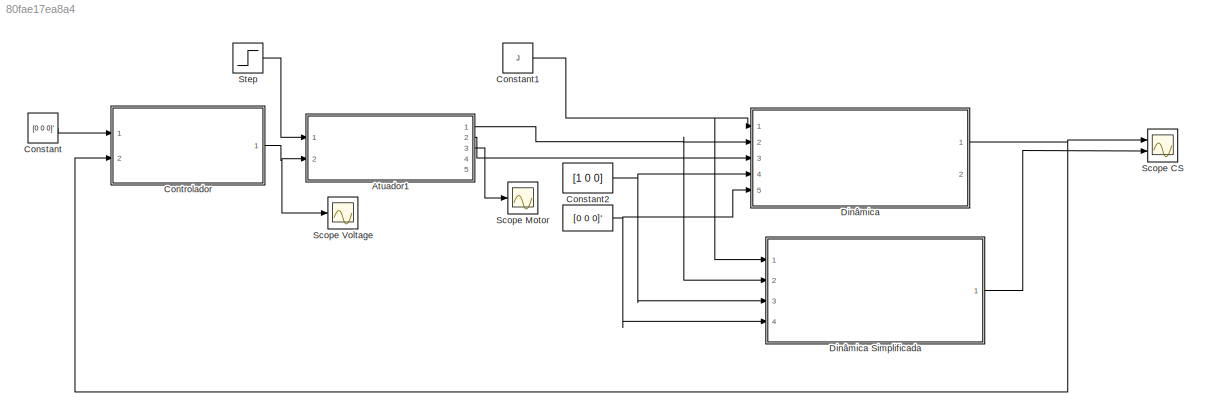
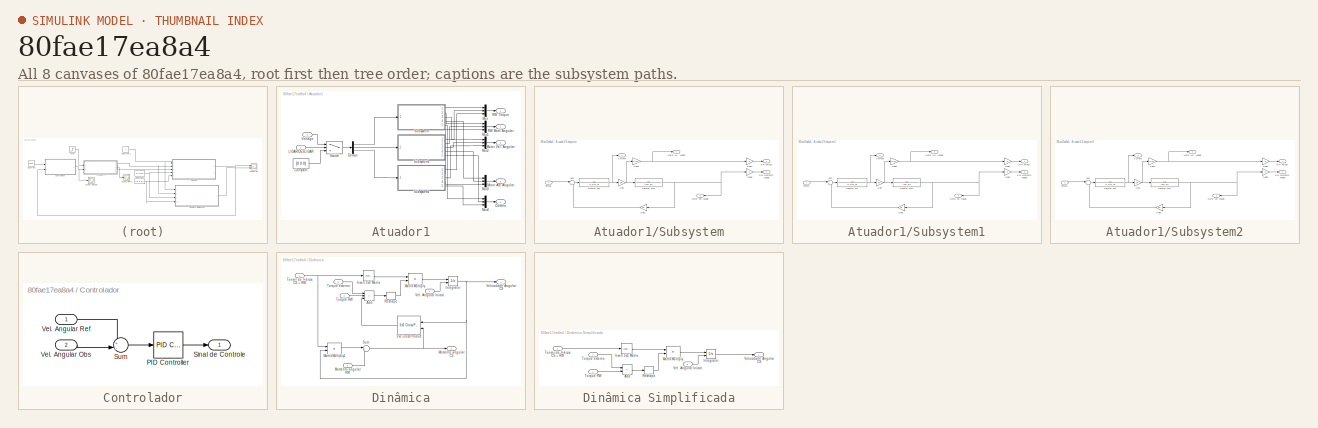
[diagram: thumbnail index - all 8 canvases of the model, root first then tree order]
MODEL slx_80fae17ea8a4
KIND model
CONFIG AbsTol = auto
CONFIG EnableMultiTasking = off
CONFIG FixedStep = auto
CONFIG MaxStep = 0.4
CONFIG MinStep = auto
CONFIG RelTol = 1e-3
CONFIG SampleTimeConstraint = Unconstrained
CONFIG SolverName = ode45
CONFIG StartTime = 0.0
CONFIG StopTime = 10000
BLOCK [Constant]  
  Value = [0 0 0]'
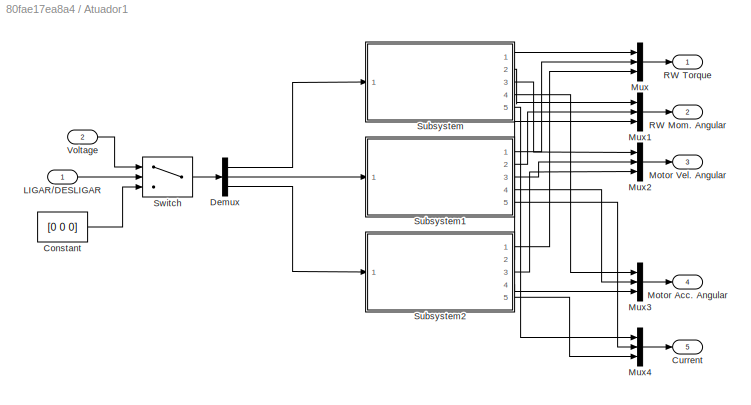
BLOCK [SubSystem] Atuador1
  Ports = [2, 5]
  RequestExecContextInheritance = off
BLOCK [Constant] Atuador1/Constant
  Value = [0 0 0]
BLOCK [Outport] Atuador1/Current
  Port = 5
BLOCK [Demux] Atuador1/Demux
  Outputs = 3
  Ports = [1, 3]
BLOCK [Inport] Atuador1/LIGAR//DESLIGAR
BLOCK [Outport] Atuador1/Motor Acc. Angular
  Port = 4
BLOCK [Outport] Atuador1/Motor Vel. Angular
  Port = 3
BLOCK [Mux] Atuador1/Mux
  DisplayOption = bar
  Inputs = 3
  Ports = [3, 1]
BLOCK [Mux] Atuador1/Mux1
  DisplayOption = bar
  Inputs = 3
  Ports = [3, 1]
BLOCK [Mux] Atuador1/Mux2
  DisplayOption = bar
  Inputs = 3
  Ports = [3, 1]
BLOCK [Mux] Atuador1/Mux3
  DisplayOption = bar
  Inputs = 3
  Ports = [3, 1]
BLOCK [Mux] Atuador1/Mux4
  DisplayOption = bar
  Inputs = 3
  Ports = [3, 1]
BLOCK [Outport] Atuador1/RW Mom. Angular
  Port = 2
BLOCK [Outport] Atuador1/RW Torque
BLOCK [SubSystem] Atuador1/Subsystem
  Ports = [1, 5]
  RequestExecContextInheritance = off
BLOCK [Outport] Atuador1/Subsystem/Current
  Port = 5
BLOCK [Gain] Atuador1/Subsystem/Gain
  Gain = Km
BLOCK [Gain] Atuador1/Subsystem/Gain1
  Gain = Ke
BLOCK [Gain] Atuador1/Subsystem/Gain2
  Gain = 1/Jm
BLOCK [Gain] Atuador1/Subsystem/Gain3
  Gain = -Jr
BLOCK [Gain] Atuador1/Subsystem/Gain4
  Gain = -Jr
BLOCK [Outport] Atuador1/Subsystem/Motor Acc. Angular
  Port = 4
BLOCK [Outport] Atuador1/Subsystem/Motor Vel. Angular
  Port = 3
BLOCK [Outport] Atuador1/Subsystem/RW Momento Angular
  Port = 2
BLOCK [Outport] Atuador1/Subsystem/RW Torque
BLOCK [Sum] Atuador1/Subsystem/Sum
  Inputs = |+-
  Ports = [2, 1]
BLOCK [Inport] Atuador1/Subsystem/Tensão
BLOCK [TransferFcn] Atuador1/Subsystem/Transfer Fcn
  Denominator = [L_a R_a]
BLOCK [TransferFcn] Atuador1/Subsystem/Transfer Fcn1
  Denominator = [Jm Kt]
BLOCK [SubSystem] Atuador1/Subsystem1
  Ports = [1, 5]
  RequestExecContextInheritance = off
BLOCK [Outport] Atuador1/Subsystem1/Current
  Port = 5
BLOCK [Gain] Atuador1/Subsystem1/Gain
  Gain = Km
BLOCK [Gain] Atuador1/Subsystem1/Gain1
  Gain = Ke
BLOCK [Gain] Atuador1/Subsystem1/Gain2
  Gain = 1/Jm
BLOCK [Gain] Atuador1/Subsystem1/Gain3
  Gain = -Jr
BLOCK [Gain] Atuador1/Subsystem1/Gain4
  Gain = -Jr
BLOCK [Outport] Atuador1/Subsystem1/Motor Acc. Angular
  Port = 4
BLOCK [Outport] Atuador1/Subsystem1/Motor Vel. Angular
  Port = 3
BLOCK [Outport] Atuador1/Subsystem1/RW Momento Angular
  Port = 2
BLOCK [Outport] Atuador1/Subsystem1/RW Torque
BLOCK [Sum] Atuador1/Subsystem1/Sum
  Inputs = |+-
  Ports = [2, 1]
BLOCK [Inport] Atuador1/Subsystem1/Tensão
BLOCK [TransferFcn] Atuador1/Subsystem1/Transfer Fcn
  Denominator = [L_a R_a]
BLOCK [TransferFcn] Atuador1/Subsystem1/Transfer Fcn1
  Denominator = [Jm Kt]
BLOCK [SubSystem] Atuador1/Subsystem2
  Ports = [1, 5]
  RequestExecContextInheritance = off
BLOCK [Outport] Atuador1/Subsystem2/Current
  Port = 5
BLOCK [Gain] Atuador1/Subsystem2/Gain
  Gain = Km
BLOCK [Gain] Atuador1/Subsystem2/Gain1
  Gain = Ke
BLOCK [Gain] Atuador1/Subsystem2/Gain2
  Gain = 1/Jm
BLOCK [Gain] Atuador1/Subsystem2/Gain3
  Gain = -Jr
BLOCK [Gain] Atuador1/Subsystem2/Gain4
  Gain = -Jr
BLOCK [Outport] Atuador1/Subsystem2/Motor Acc. Angular
  Port = 4
BLOCK [Outport] Atuador1/Subsystem2/Motor Vel. Angular
  Port = 3
BLOCK [Outport] Atuador1/Subsystem2/RW Momento Angular
  Port = 2
BLOCK [Outport] Atuador1/Subsystem2/RW Torque
BLOCK [Sum] Atuador1/Subsystem2/Sum
  Inputs = |+-
  Ports = [2, 1]
BLOCK [Inport] Atuador1/Subsystem2/Tensão
BLOCK [TransferFcn] Atuador1/Subsystem2/Transfer Fcn
  Denominator = [L_a R_a]
BLOCK [TransferFcn] Atuador1/Subsystem2/Transfer Fcn1
  Denominator = [Jm Kt]
BLOCK [Switch] Atuador1/Switch
  Criteria = u2 > Threshold
  InputSameDT = off
  SaturateOnIntegerOverflow = off
BLOCK [Inport] Atuador1/Voltage
  Port = 2
BLOCK [Constant] Constant
  Value = [0 0 0]'
BLOCK [Constant] Constant1
  Value = J
BLOCK [Constant] Constant2
  Value = [1 0 0]
BLOCK [SubSystem] Controlador
  Ports = [2, 1]
  RequestExecContextInheritance = off
BLOCK [Reference] Controlador/PID Controller  REF=slpidlib/PID Controller
  Ports = [1, 1]
  SourceBlock = slpidlib/PID Controller
  SourceProductBaseCode = SL
  SourceType = PID 1dof
BLOCK [Outport] Controlador/Sinal de Controle
BLOCK [Sum] Controlador/Sum
  Inputs = +-|
  Ports = [2, 1]
BLOCK [Inport] Controlador/Vel. Angular Obs
  Port = 2
BLOCK [Inport] Controlador/Vel. Angular Ref
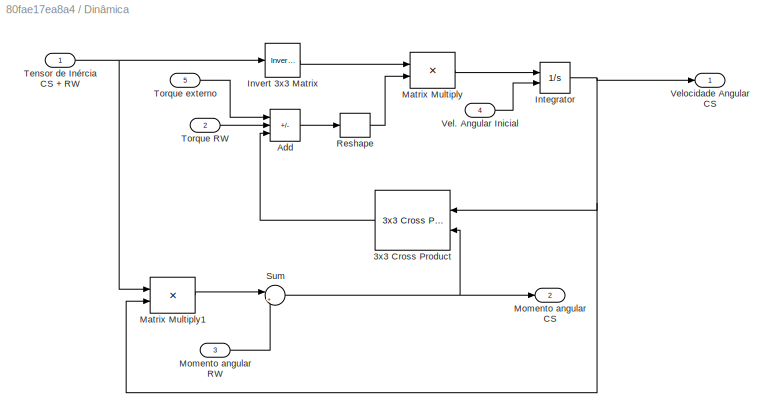
BLOCK [SubSystem] Dinâmica
  Ports = [5, 2]
  RequestExecContextInheritance = off
BLOCK [SubSystem] Dinâmica Simplificada
  Ports = [4, 1]
  RequestExecContextInheritance = off
BLOCK [Sum] Dinâmica Simplificada/Add
  IconShape = rectangular
  Inputs = +-
  Ports = [2, 1]
BLOCK [Integrator] Dinâmica Simplificada/Integrator
  InitialConditionSource = external
  Ports = [2, 1]
BLOCK [Reference] Dinâmica Simplificada/Invert 3x3 Matrix  REF=aerolibutil/Invert 
3x3 Matrix
  Ports = [1, 1]
  SourceBlock = aerolibutil/Invert \n3x3 Matrix
  SourceProductBaseCode = AE
  SourceType = Invert 3x3 Matrix
BLOCK [Product] Dinâmica Simplificada/Matrix Multiply
  Multiplication = Matrix(*)
  Ports = [2, 1]
BLOCK [Reshape] Dinâmica Simplificada/Reshape
  OutputDimensionality = Column vector (2-D)
  Ports = [1, 1]
BLOCK [Inport] Dinâmica Simplificada/Tensor de Inércia CS + RW
BLOCK [Inport] Dinâmica Simplificada/Torque RW
  Port = 2
BLOCK [Inport] Dinâmica Simplificada/Torque externo
  Port = 4
BLOCK [Inport] Dinâmica Simplificada/Vel. Angular Inicial
  Port = 3
BLOCK [Outport] Dinâmica Simplificada/Velocidade Angular CS
BLOCK [Reference] Dinâmica/3x3 Cross Product  REF=sharedutil/3x3 Cross Product
  NameLocation = top
  Ports = [2, 1]
  SourceBlock = sharedutil/3x3 Cross Product
  SourceProductBaseCode = AE,PW,DR,MT,UV,VE
  SourceType = CrossProduct
BLOCK [Sum] Dinâmica/Add
  IconShape = rectangular
  Inputs = +--
  Ports = [3, 1]
BLOCK [Integrator] Dinâmica/Integrator
  InitialConditionSource = external
  Ports = [2, 1]
BLOCK [Reference] Dinâmica/Invert 3x3 Matrix  REF=aerolibutil/Invert 
3x3 Matrix
  Ports = [1, 1]
  SourceBlock = aerolibutil/Invert \n3x3 Matrix
  SourceProductBaseCode = AE
  SourceType = Invert 3x3 Matrix
BLOCK [Product] Dinâmica/Matrix Multiply
  Multiplication = Matrix(*)
  Ports = [2, 1]
BLOCK [Product] Dinâmica/Matrix Multiply1
  Multiplication = Matrix(*)
  Ports = [2, 1]
BLOCK [Outport] Dinâmica/Momento angular CS
  Port = 2
BLOCK [Inport] Dinâmica/Momento angular RW
  Port = 3
BLOCK [Reshape] Dinâmica/Reshape
  OutputDimensionality = Column vector (2-D)
  Ports = [1, 1]
BLOCK [Sum] Dinâmica/Sum
  Inputs = |++
  Ports = [2, 1]
BLOCK [Inport] Dinâmica/Tensor de Inércia CS + RW
BLOCK [Inport] Dinâmica/Torque RW
  Port = 2
BLOCK [Inport] Dinâmica/Torque externo
  Port = 5
BLOCK [Inport] Dinâmica/Vel. Angular Inicial
  Port = 4
BLOCK [Outport] Dinâmica/Velocidade Angular CS
BLOCK [Scope] Scope CS
  Floating = off
  NumInputPorts = 2
  Ports = [2]
  ScopeSpecificationString = Simulink.scopes.TimeScopeBlockCfg('CurrentConfiguration', extmgr.ConfigurationSet(extmgr.Configuration('Core','General UI',true),extmgr.Configuration('Core','Source UI',true),extmgr.Configuration('Sources','WiredSimulink',true),extmgr.Configuration('Visuals','Time Domain',true,'SerializedDisplays',{struct('MinYLimReal','-0.12501','MaxYLimReal','1.125','YLabelReal','','MinYLimMag','0.00000','MaxYLi...<+2280ch>
BLOCK [Scope] Scope Motor
  Floating = off
  NumInputPorts = 1
  Ports = [1]
  ScopeSpecificationString = Simulink.scopes.TimeScopeBlockCfg('CurrentConfiguration', extmgr.ConfigurationSet(extmgr.Configuration('Core','General UI',true),extmgr.Configuration('Core','Source UI',true),extmgr.Configuration('Sources','WiredSimulink',true,'DataLoggingVariableName','ScopeData1'),extmgr.Configuration('Visuals','Time Domain',true,'SerializedDisplays',{struct('MinYLimReal','-0.4799','MaxYLimReal','0.05333','YLabe...<+1503ch>
BLOCK [Scope] Scope Voltage
  Floating = off
  NumInputPorts = 1
  Ports = [1]
  ScopeSpecificationString = Simulink.scopes.TimeScopeBlockCfg('CurrentConfiguration', extmgr.ConfigurationSet(extmgr.Configuration('Core','General UI',true),extmgr.Configuration('Core','Source UI',true),extmgr.Configuration('Sources','WiredSimulink',true,'DataLoggingVariableName','ScopeData1'),extmgr.Configuration('Visuals','Time Domain',true,'SerializedDisplays',{struct('MinYLimReal','-2200.37484','MaxYLimReal','246.01178',...<+1588ch>
BLOCK [Step] Step
  Before = 1
  SampleTime = 0
  Time = 5000
NET  :1 -> Dinâmica Simplificada:4, Dinâmica:5
LINE Atuador1/Constant:1 -> Atuador1/Switch:3
LINE Atuador1/Demux:1 -> Atuador1/Subsystem:1
LINE Atuador1/Demux:2 -> Atuador1/Subsystem1:1
LINE Atuador1/Demux:3 -> Atuador1/Subsystem2:1
LINE Atuador1/LIGAR//DESLIGAR:1 -> Atuador1/Switch:2
LINE Atuador1/Mux1:1 -> Atuador1/RW Mom. Angular:1
LINE Atuador1/Mux2:1 -> Atuador1/Motor Vel. Angular:1
LINE Atuador1/Mux3:1 -> Atuador1/Motor Acc. Angular:1
LINE Atuador1/Mux4:1 -> Atuador1/Current:1
LINE Atuador1/Mux:1 -> Atuador1/RW Torque:1
LINE Atuador1/Subsystem/Gain1:1 -> Atuador1/Subsystem/Sum:2
NET Atuador1/Subsystem/Gain2:1 -> Atuador1/Subsystem/Gain4:1, Atuador1/Subsystem/Motor Acc. Angular:1
LINE Atuador1/Subsystem/Gain3:1 -> Atuador1/Subsystem/RW Momento Angular:1
LINE Atuador1/Subsystem/Gain4:1 -> Atuador1/Subsystem/RW Torque:1
NET Atuador1/Subsystem/Gain:1 -> Atuador1/Subsystem/Gain2:1, Atuador1/Subsystem/Transfer Fcn1:1
LINE Atuador1/Subsystem/Sum:1 -> Atuador1/Subsystem/Transfer Fcn:1
LINE Atuador1/Subsystem/Tensão:1 -> Atuador1/Subsystem/Sum:1
NET Atuador1/Subsystem/Transfer Fcn1:1 -> Atuador1/Subsystem/Gain1:1, Atuador1/Subsystem/Gain3:1, Atuador1/Subsystem/Motor Vel. Angular:1
NET Atuador1/Subsystem/Transfer Fcn:1 -> Atuador1/Subsystem/Current:1, Atuador1/Subsystem/Gain:1
LINE Atuador1/Subsystem1/Gain1:1 -> Atuador1/Subsystem1/Sum:2
NET Atuador1/Subsystem1/Gain2:1 -> Atuador1/Subsystem1/Gain4:1, Atuador1/Subsystem1/Motor Acc. Angular:1
LINE Atuador1/Subsystem1/Gain3:1 -> Atuador1/Subsystem1/RW Momento Angular:1
LINE Atuador1/Subsystem1/Gain4:1 -> Atuador1/Subsystem1/RW Torque:1
NET Atuador1/Subsystem1/Gain:1 -> Atuador1/Subsystem1/Gain2:1, Atuador1/Subsystem1/Transfer Fcn1:1
LINE Atuador1/Subsystem1/Sum:1 -> Atuador1/Subsystem1/Transfer Fcn:1
LINE Atuador1/Subsystem1/Tensão:1 -> Atuador1/Subsystem1/Sum:1
NET Atuador1/Subsystem1/Transfer Fcn1:1 -> Atuador1/Subsystem1/Gain1:1, Atuador1/Subsystem1/Gain3:1, Atuador1/Subsystem1/Motor Vel. Angular:1
NET Atuador1/Subsystem1/Transfer Fcn:1 -> Atuador1/Subsystem1/Current:1, Atuador1/Subsystem1/Gain:1
LINE Atuador1/Subsystem1:1 -> Atuador1/Mux:2
LINE Atuador1/Subsystem1:2 -> Atuador1/Mux1:2
LINE Atuador1/Subsystem1:3 -> Atuador1/Mux2:2
LINE Atuador1/Subsystem1:4 -> Atuador1/Mux3:2
LINE Atuador1/Subsystem1:5 -> Atuador1/Mux4:2
LINE Atuador1/Subsystem2/Gain1:1 -> Atuador1/Subsystem2/Sum:2
NET Atuador1/Subsystem2/Gain2:1 -> Atuador1/Subsystem2/Gain4:1, Atuador1/Subsystem2/Motor Acc. Angular:1
LINE Atuador1/Subsystem2/Gain3:1 -> Atuador1/Subsystem2/RW Momento Angular:1
LINE Atuador1/Subsystem2/Gain4:1 -> Atuador1/Subsystem2/RW Torque:1
NET Atuador1/Subsystem2/Gain:1 -> Atuador1/Subsystem2/Gain2:1, Atuador1/Subsystem2/Transfer Fcn1:1
LINE Atuador1/Subsystem2/Sum:1 -> Atuador1/Subsystem2/Transfer Fcn:1
LINE Atuador1/Subsystem2/Tensão:1 -> Atuador1/Subsystem2/Sum:1
NET Atuador1/Subsystem2/Transfer Fcn1:1 -> Atuador1/Subsystem2/Gain1:1, Atuador1/Subsystem2/Gain3:1, Atuador1/Subsystem2/Motor Vel. Angular:1
NET Atuador1/Subsystem2/Transfer Fcn:1 -> Atuador1/Subsystem2/Current:1, Atuador1/Subsystem2/Gain:1
LINE Atuador1/Subsystem2:1 -> Atuador1/Mux:3
LINE Atuador1/Subsystem2:2 -> Atuador1/Mux1:3
LINE Atuador1/Subsystem2:3 -> Atuador1/Mux2:3
LINE Atuador1/Subsystem2:4 -> Atuador1/Mux3:3
LINE Atuador1/Subsystem2:5 -> Atuador1/Mux4:3
LINE Atuador1/Subsystem:1 -> Atuador1/Mux:1
LINE Atuador1/Subsystem:2 -> Atuador1/Mux1:1
LINE Atuador1/Subsystem:3 -> Atuador1/Mux2:1
LINE Atuador1/Subsystem:4 -> Atuador1/Mux3:1
LINE Atuador1/Subsystem:5 -> Atuador1/Mux4:1
LINE Atuador1/Switch:1 -> Atuador1/Demux:1
LINE Atuador1/Voltage:1 -> Atuador1/Switch:1
NET Atuador1:1 -> Dinâmica Simplificada:2, Dinâmica:2
LINE Atuador1:2 -> Dinâmica:3
LINE Atuador1:3 -> Scope Motor:1
NET Constant1:1 -> Dinâmica Simplificada:1, Dinâmica:1
NET Constant2:1 -> Dinâmica Simplificada:3, Dinâmica:4
LINE Constant:1 -> Controlador:1
LINE Controlador/PID Controller:1 -> Controlador/Sinal de Controle:1
LINE Controlador/Sum:1 -> Controlador/PID Controller:1
LINE Controlador/Vel. Angular Obs:1 -> Controlador/Sum:2
LINE Controlador/Vel. Angular Ref:1 -> Controlador/Sum:1
NET Controlador:1 -> Atuador1:2, Scope Voltage:1
LINE Dinâmica Simplificada/Add:1 -> Dinâmica Simplificada/Reshape:1
LINE Dinâmica Simplificada/Integrator:1 -> Dinâmica Simplificada/Velocidade Angular CS:1
LINE Dinâmica Simplificada/Invert 3x3 Matrix:1 -> Dinâmica Simplificada/Matrix Multiply:1
LINE Dinâmica Simplificada/Matrix Multiply:1 -> Dinâmica Simplificada/Integrator:1
LINE Dinâmica Simplificada/Reshape:1 -> Dinâmica Simplificada/Matrix Multiply:2
LINE Dinâmica Simplificada/Tensor de Inércia CS + RW:1 -> Dinâmica Simplificada/Invert 3x3 Matrix:1
LINE Dinâmica Simplificada/Torque RW:1 -> Dinâmica Simplificada/Add:2
LINE Dinâmica Simplificada/Torque externo:1 -> Dinâmica Simplificada/Add:1
LINE Dinâmica Simplificada/Vel. Angular Inicial:1 -> Dinâmica Simplificada/Integrator:2
LINE Dinâmica Simplificada:1 -> Scope CS:2
LINE Dinâmica/3x3 Cross Product:1 -> Dinâmica/Add:3
LINE Dinâmica/Add:1 -> Dinâmica/Reshape:1
NET Dinâmica/Integrator:1 -> Dinâmica/3x3 Cross Product:1, Dinâmica/Matrix Multiply1:2, Dinâmica/Velocidade Angular CS:1
LINE Dinâmica/Invert 3x3 Matrix:1 -> Dinâmica/Matrix Multiply:1
LINE Dinâmica/Matrix Multiply1:1 -> Dinâmica/Sum:1
LINE Dinâmica/Matrix Multiply:1 -> Dinâmica/Integrator:1
LINE Dinâmica/Momento angular RW:1 -> Dinâmica/Sum:2
LINE Dinâmica/Reshape:1 -> Dinâmica/Matrix Multiply:2
NET Dinâmica/Sum:1 -> Dinâmica/3x3 Cross Product:2, Dinâmica/Momento angular CS:1
NET Dinâmica/Tensor de Inércia CS + RW:1 -> Dinâmica/Invert 3x3 Matrix:1, Dinâmica/Matrix Multiply1:1
LINE Dinâmica/Torque RW:1 -> Dinâmica/Add:2
LINE Dinâmica/Torque externo:1 -> Dinâmica/Add:1
LINE Dinâmica/Vel. Angular Inicial:1 -> Dinâmica/Integrator:2
NET Dinâmica:1 -> Controlador:2, Scope CS:1
LINE Step:1 -> Atuador1:1
note: NET lines group one-source signal fan-out (src -> all destinations, sorted); 1:1 wires keep LINE
